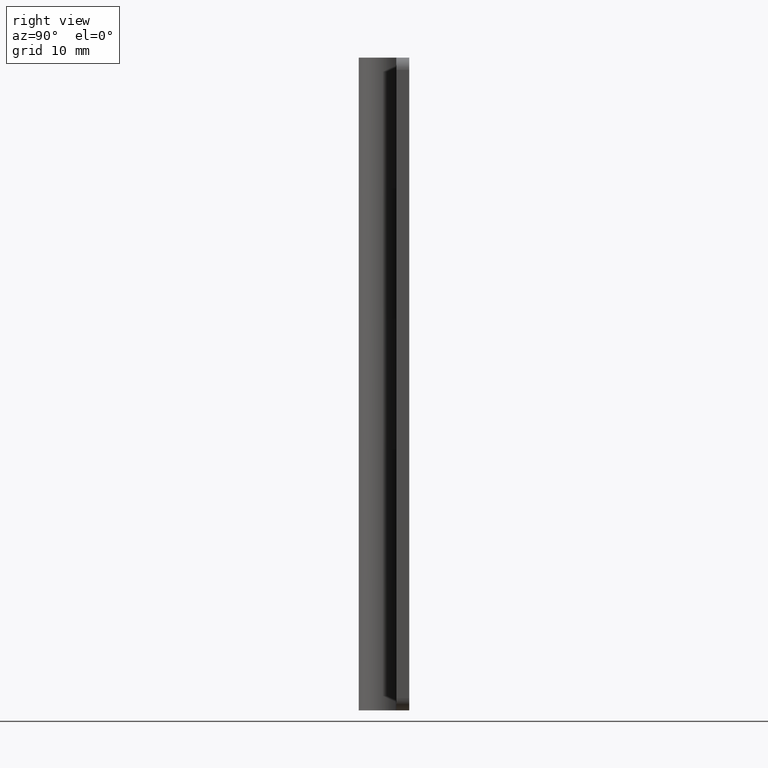
[diagram: clean part render]
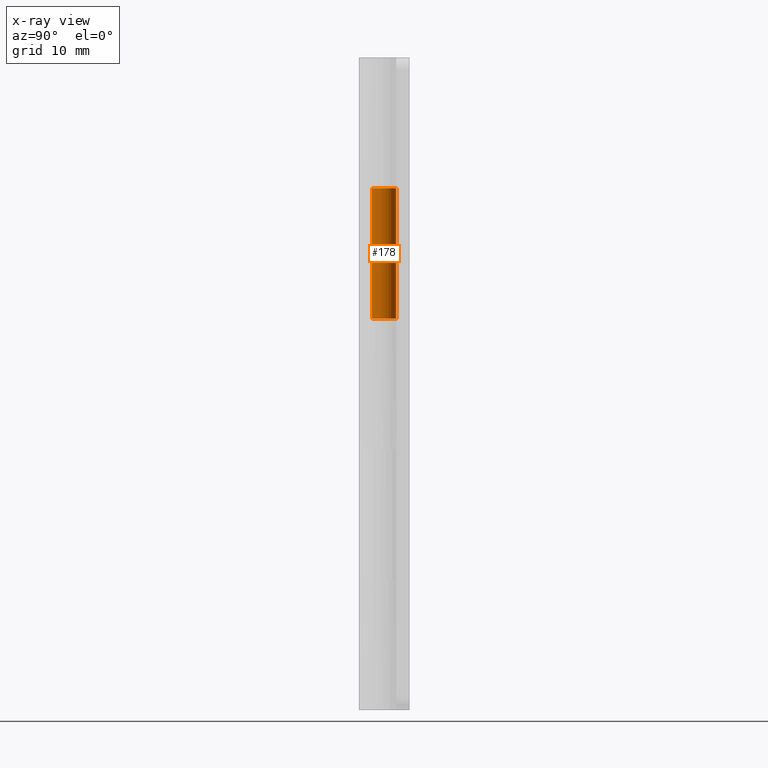
[diagram: x-ray — body ghosted, one internal face saturated and labeled with its STEP entity id]
A machine part, right view, then the same camera in x-ray: the body is ghosted and one INTERNAL B-rep face — a face not visible from any outside direction — is saturated and labeled: STEP entity #178.
In plain terms, the highlighted face is a freeform B-spline surface patch.
Its self-contained STEP definition (entity closure, byte-faithful):
#12=CARTESIAN_POINT('',(-1.325797621821314,0.701612903225806,47.999992999999897));
#13=VERTEX_POINT('',#12);
#26=CARTESIAN_POINT('',(-1.325797621821314,0.701612903225806,63.999992999999897));
#27=VERTEX_POINT('',#26);
#33=CARTESIAN_POINT('',(-1.325797621821314,0.701612903225806,63.999992999999897));
#34=CARTESIAN_POINT('',(-1.325797621821314,0.701612903225806,47.999992999999897));
#35=QUASI_UNIFORM_CURVE('',1,(#33,#34),.UNSPECIFIED.,.F.,.U.);
#36=EDGE_CURVE('',#27,#13,#35,.T.);
#77=CARTESIAN_POINT('',(-1.305533543909849,0.738635340155200,64.399992999999895));
#78=CARTESIAN_POINT('',(-1.305533543909849,0.738635340155200,47.589992999999907));
#79=CARTESIAN_POINT('',(-2.206899179836648,-0.854523027792384,64.399992999999881));
#80=CARTESIAN_POINT('',(-2.206899179836648,-0.854523027792384,47.589992999999907));
#81=CARTESIAN_POINT('',(-0.467673291524516,-1.425230399758097,64.399992999999895));
#82=CARTESIAN_POINT('',(-0.467673291524516,-1.425230399758097,47.589992999999907));
#83=CARTESIAN_POINT('',(1.271552596787615,-1.995937771723809,64.399992999999881));
#84=CARTESIAN_POINT('',(1.271552596787615,-1.995937771723809,47.589992999999907));
#85=CARTESIAN_POINT('',(1.489344683148763,-0.178472448228038,64.399992999999895));
#86=CARTESIAN_POINT('',(1.489344683148763,-0.178472448228038,47.589992999999907));
#87=CARTESIAN_POINT('',(1.707136769509911,1.638992875267735,64.399992999999881));
#88=CARTESIAN_POINT('',(1.707136769509911,1.638992875267735,47.589992999999907));
#89=CARTESIAN_POINT('',(-0.117688643591768,1.495376000599692,64.399992999999895));
#90=CARTESIAN_POINT('',(-0.117688643591768,1.495376000599692,47.589992999999907));
#98=(BOUNDED_SURFACE()B_SPLINE_SURFACE(1,2,((#77,#79,#81,#83,#85,#87,#89),(#78,#80,#82,#84,#86,#88,#90)),.UNSPECIFIED.,.F.,.F.,.U.)B_SPLINE_SURFACE_WITH_KNOTS((2,2),(3,2,2,3),(0.0,16.809999999999992),(0.0,2.840458804494715,5.680917608989430,8.521376413484145),.UNSPECIFIED.)GEOMETRIC_REPRESENTATION_ITEM()RATIONAL_B_SPLINE_SURFACE(((1.0,0.633830967398710,1.0,0.633830967398710,1.0,0.633830967398710,1.0),(1.0,0.633830967398710,1.0,0.633830967398710,1.0,0.633830967398710,1.0)))REPRESENTATION_ITEM('')SURFACE());
#99=CARTESIAN_POINT('',(0.773815405252077,-1.284994053914089,47.999992999999897));
#100=VERTEX_POINT('',#99);
#101=CARTESIAN_POINT('',(0.0,1.500000000000000,47.999992999999897));
#102=VERTEX_POINT('',#101);
#103=CARTESIAN_POINT('',(0.773815405252077,-1.284994053914089,47.999992999999897));
#104=CARTESIAN_POINT('',(0.895634363748923,-1.211703038859260,47.999992999999890));
#105=CARTESIAN_POINT('',(1.086321164101650,-1.056031587794362,47.999992999999932));
#106=CARTESIAN_POINT('',(1.337310952590862,-0.721119308683050,47.999992999999982));
#107=CARTESIAN_POINT('',(1.467338866952526,-0.384675464221537,47.999992999999741));
#108=CARTESIAN_POINT('',(1.508084824936561,-0.030375329319108,47.999993000000103));
#109=CARTESIAN_POINT('',(1.486651313892886,0.285294399507203,47.999992999999812));
#110=CARTESIAN_POINT('',(1.374150590228515,0.647208489984913,47.999992999999947));
#111=CARTESIAN_POINT('',(1.156372347687365,0.982776802183850,47.999992999999947));
#112=CARTESIAN_POINT('',(0.889784393445851,1.221822969944595,47.999993000000103));
#113=CARTESIAN_POINT('',(0.517668957426717,1.433903022534183,47.999992999999911));
#114=CARTESIAN_POINT('',(0.213306352768499,1.500317689742606,47.999992999999712));
#115=CARTESIAN_POINT('',(0.0,1.500000000000000,47.999992999999897));
#116=B_SPLINE_CURVE_WITH_KNOTS('',3,(#103,#104,#105,#106,#107,#108,#109,#110,#111,#112,#113,#114,#115),.UNSPECIFIED.,.F.,.U.,(4,1,1,1,1,1,1,1,1,1,4),(0.000000369999635,0.426487347437495,0.731129274768261,1.249038422832211,1.492746528279600,1.797433350808740,2.193377762455715,2.619900946924423,2.985489473416717,3.259681716133974,3.899409482669189),.UNSPECIFIED.);
#117=EDGE_CURVE('',#100,#102,#116,.T.);
#118=ORIENTED_EDGE('',*,*,#117,.F.);
#119=CARTESIAN_POINT('',(-1.325797621821314,0.701612903225806,47.999992999999897));
#120=CARTESIAN_POINT('',(-1.430626099370731,0.504253845374107,47.999992999999982));
#121=CARTESIAN_POINT('',(-1.527561201667930,0.142361122099049,47.999992999999769));
#122=CARTESIAN_POINT('',(-1.472086308779498,-0.398536277147311,47.999993000000039));
#123=CARTESIAN_POINT('',(-1.292575682472050,-0.803686747173659,47.999992999999833));
#124=CARTESIAN_POINT('',(-0.998608354145509,-1.144601400606687,47.999993000000003));
#125=CARTESIAN_POINT('',(-0.690345416391653,-1.348833889840463,47.999992999999812));
#126=CARTESIAN_POINT('',(-0.325184395746993,-1.478585895047061,47.999993000000167));
#127=CARTESIAN_POINT('',(0.041959036019140,-1.518354801694839,47.999992999999172));
#128=CARTESIAN_POINT('',(0.435932280845435,-1.452179936575441,47.999993000001481));
#129=CARTESIAN_POINT('',(0.669447850351567,-1.347870781649599,47.999992999997943));
#130=CARTESIAN_POINT('',(0.773815405252077,-1.284994053914089,47.999992999999897));
#131=B_SPLINE_CURVE_WITH_KNOTS('',3,(#119,#120,#121,#122,#123,#124,#125,#126,#127,#128,#129,#130),.UNSPECIFIED.,.F.,.U.,(4,1,1,1,1,1,1,1,1,4),(0.000000369999761,0.670211235888678,1.096716752933824,1.614639947299201,1.980124007116566,2.437100813813664,2.711302660828602,3.137813502479348,3.533872618808298,3.899409420552114),.UNSPECIFIED.);
#132=EDGE_CURVE('',#13,#100,#131,.T.);
#133=ORIENTED_EDGE('',*,*,#132,.F.);
#134=ORIENTED_EDGE('',*,*,#36,.F.);
#135=CARTESIAN_POINT('',(0.773815405252077,-1.284994053914089,63.999992999999897));
#136=VERTEX_POINT('',#135);
#137=CARTESIAN_POINT('',(-1.325797621821314,0.701612903225806,63.999992999999897));
#138=CARTESIAN_POINT('',(-1.392340067204247,0.575982393123900,63.999993000000181));
#139=CARTESIAN_POINT('',(-1.485826166472897,0.315285048191658,63.999992999999591));
#140=CARTESIAN_POINT('',(-1.511750864715063,-0.052555000033261,63.999993000000053));
#141=CARTESIAN_POINT('',(-1.457357002952047,-0.405299133821567,63.999992999999911));
#142=CARTESIAN_POINT('',(-1.314350315868547,-0.767307565477471,63.999992999999940));
#143=CARTESIAN_POINT('',(-1.032922968634869,-1.121946624379751,63.999993000000018));
#144=CARTESIAN_POINT('',(-0.690339470802213,-1.348825154205484,63.999992999999790));
#145=CARTESIAN_POINT('',(-0.325184427152608,-1.478586648098025,63.999993000000231));
#146=CARTESIAN_POINT('',(0.041959013200048,-1.518354837892179,63.999992999998938));
#147=CARTESIAN_POINT('',(0.435932283100183,-1.452179932996428,63.999993000001979));
#148=CARTESIAN_POINT('',(0.669447850427299,-1.347870781530172,63.999992999997268));
#149=CARTESIAN_POINT('',(0.773815405252077,-1.284994053914089,63.999992999999897));
#150=B_SPLINE_CURVE_WITH_KNOTS('',3,(#137,#138,#139,#140,#141,#142,#143,#144,#145,#146,#147,#148,#149),.UNSPECIFIED.,.F.,.U.,(4,1,1,1,1,1,1,1,1,1,4),(0.000000369999761,0.426487340642981,0.822529139914681,1.096716752933824,1.492746504499114,1.980124007116566,2.437100813813664,2.711302660828602,3.137813502479348,3.533872618808298,3.899409420552114),.UNSPECIFIED.);
#151=EDGE_CURVE('',#27,#136,#150,.T.);
#152=ORIENTED_EDGE('',*,*,#151,.T.);
#153=CARTESIAN_POINT('',(0.0,1.500000000000000,63.999992999999897));
#154=VERTEX_POINT('',#153);
#155=CARTESIAN_POINT('',(0.773815405252077,-1.284994053914089,63.999992999999897));
#156=CARTESIAN_POINT('',(0.895634331814921,-1.211703086294106,63.999992999999883));
#157=CARTESIAN_POINT('',(1.086321253546853,-1.056031490348657,63.999992999999847));
#158=CARTESIAN_POINT('',(1.337310783276977,-0.721119354491435,63.999993000000082));
#159=CARTESIAN_POINT('',(1.467339074513161,-0.384675379373253,63.999992999999691));
#160=CARTESIAN_POINT('',(1.508084675997259,-0.030375408175791,63.999993000000082));
#161=CARTESIAN_POINT('',(1.486649801328990,0.285292866615447,63.999992999999911));
#162=CARTESIAN_POINT('',(1.371113476060243,0.656995734234502,63.999992999999847));
#163=CARTESIAN_POINT('',(1.115580220011667,1.042246839925754,63.999992999999591));
#164=CARTESIAN_POINT('',(0.781750674499219,1.301338923464686,63.999993000000607));
#165=CARTESIAN_POINT('',(0.395964409041158,1.462535070523828,63.999992999999137));
#166=CARTESIAN_POINT('',(0.152318135320386,1.500072959561300,63.999993000000117));
#167=CARTESIAN_POINT('',(0.0,1.500000000000000,63.999992999999897));
#168=B_SPLINE_CURVE_WITH_KNOTS('',3,(#155,#156,#157,#158,#159,#160,#161,#162,#163,#164,#165,#166,#167),.UNSPECIFIED.,.F.,.U.,(4,1,1,1,1,1,1,1,1,1,4),(0.000000369999635,0.426487347437495,0.731129274768261,1.249038422832211,1.492746528279600,1.797433350808740,2.193377762455715,2.650376346528231,3.168283670535716,3.442476696612114,3.899409482669189),.UNSPECIFIED.);
#169=EDGE_CURVE('',#136,#154,#168,.T.);
#170=ORIENTED_EDGE('',*,*,#169,.T.);
#171=CARTESIAN_POINT('',(0.0,1.500000000000000,63.999992999999897));
#172=CARTESIAN_POINT('',(0.0,1.500000000000000,47.999992999999897));
#173=QUASI_UNIFORM_CURVE('',1,(#171,#172),.UNSPECIFIED.,.F.,.U.);
#174=EDGE_CURVE('',#154,#102,#173,.T.);
#175=ORIENTED_EDGE('',*,*,#174,.T.);
#176=EDGE_LOOP('',(#118,#133,#134,#152,#170,#175));
#177=FACE_OUTER_BOUND('',#176,.T.);
#178=ADVANCED_FACE('',(#177),#98,.F.);